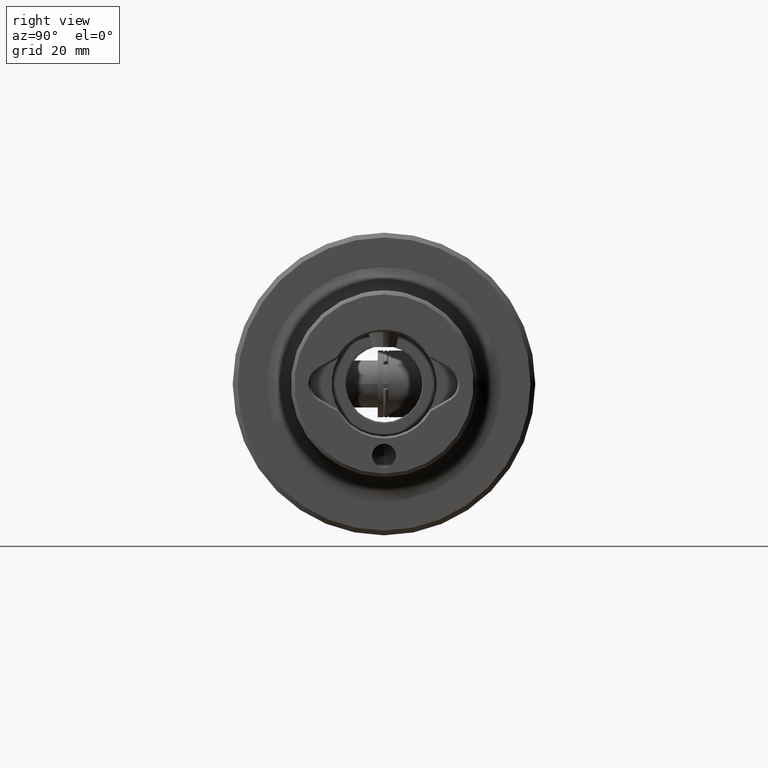
[diagram: clean part render]
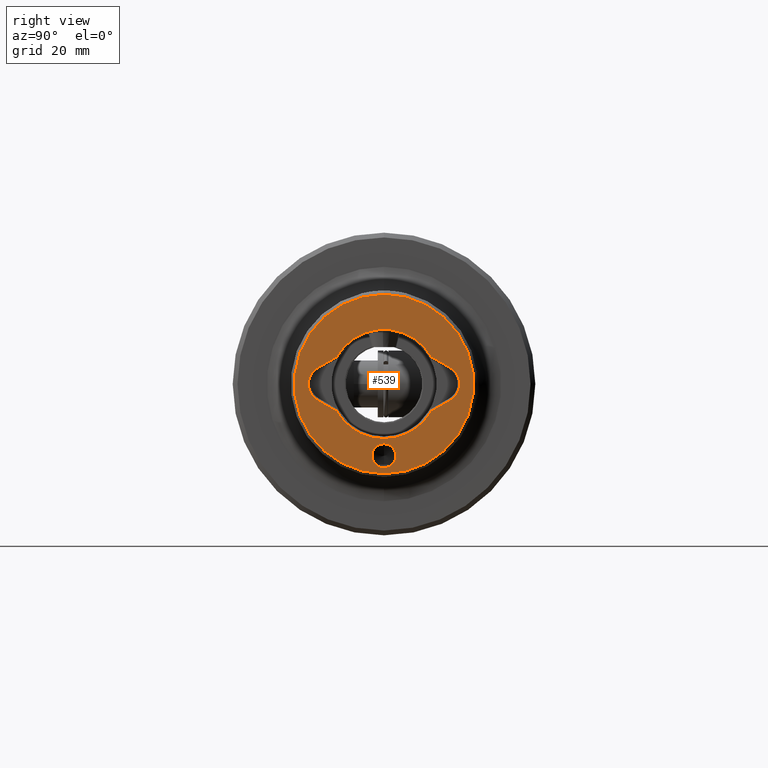
[diagram: same view with one face highlighted and labeled with its STEP entity id]
A machine part, right view. The second image highlights one B-rep face of the part: STEP entity #539.
In plain terms, the highlighted planar face has unit normal (1, 0, 0).
Its self-contained STEP definition (entity closure, byte-faithful):
#133 = DIRECTION ( 'NONE',  ( -1.000000000000000000, -0.0000000000000000000, -0.0000000000000000000 ) ) ;
#138 = CIRCLE ( 'NONE', #1647, 11.39999999999999300 ) ;
#224 = DIRECTION ( 'NONE',  ( -1.000000000000000000, -0.0000000000000000000, -0.0000000000000000000 ) ) ;
#259 = LINE ( 'NONE', #4047, #4473 ) ;
#263 = CARTESIAN_POINT ( 'NONE',  ( 124.0000000000000000, 0.0000000000000000000, -17.49999999999999600 ) ) ;
#373 = ORIENTED_EDGE ( 'NONE', *, *, #2953, .T. ) ;
#421 = CARTESIAN_POINT ( 'NONE',  ( 124.0000000000000000, 0.0000000000000000000, -15.00000000000000000 ) ) ;
#445 = DIRECTION ( 'NONE',  ( 0.0000000000000000000, 0.0000000000000000000, -1.000000000000000000 ) ) ;
#446 = VECTOR ( 'NONE', #3450, 1000.000000000000000 ) ;
#532 = ORIENTED_EDGE ( 'NONE', *, *, #3306, .T. ) ;
#539 = ADVANCED_FACE ( 'NONE', ( #925, #4188, #2014 ), #3411, .T. ) ;
#657 = AXIS2_PLACEMENT_3D ( 'NONE', #3458, #1004, #3875 ) ;
#779 = LINE ( 'NONE', #2772, #1855 ) ;
#803 = EDGE_CURVE ( 'NONE', #4954, #1949, #3296, .T. ) ;
#839 = CIRCLE ( 'NONE', #2760, 11.39999999999999100 ) ;
#925 = FACE_BOUND ( 'NONE', #4695, .T. ) ;
#954 = VERTEX_POINT ( 'NONE', #5038 ) ;
#965 = CARTESIAN_POINT ( 'NONE',  ( 124.0000000000000000, 2.329890535377839500E-015, -18.75000000000000000 ) ) ;
#1004 = DIRECTION ( 'NONE',  ( -1.000000000000000000, -0.0000000000000000000, -0.0000000000000000000 ) ) ;
#1099 = VECTOR ( 'NONE', #2131, 1000.000000000000000 ) ;
#1106 = CIRCLE ( 'NONE', #2880, 3.899999999999988400 ) ;
#1195 = CARTESIAN_POINT ( 'NONE',  ( 124.0000000000000000, 0.0000000000000000000, 0.0000000000000000000 ) ) ;
#1246 = CARTESIAN_POINT ( 'NONE',  ( 124.0000000000000000, 11.91000000000000700, -3.469446951953614200E-015 ) ) ;
#1301 = DIRECTION ( 'NONE',  ( -1.000000000000000000, -0.0000000000000000000, -0.0000000000000000000 ) ) ;
#1325 = ORIENTED_EDGE ( 'NONE', *, *, #3987, .T. ) ;
#1369 = DIRECTION ( 'NONE',  ( 1.000000000000000000, 0.0000000000000000000, 0.0000000000000000000 ) ) ;
#1382 = DIRECTION ( 'NONE',  ( 1.000000000000000000, -0.0000000000000000000, -0.0000000000000000000 ) ) ;
#1567 = ORIENTED_EDGE ( 'NONE', *, *, #3164, .F. ) ;
#1602 = DIRECTION ( 'NONE',  ( 0.0000000000000000000, 0.0000000000000000000, -1.000000000000000000 ) ) ;
#1647 = AXIS2_PLACEMENT_3D ( 'NONE', #3749, #1301, #4166 ) ;
#1655 = DIRECTION ( 'NONE',  ( 0.0000000000000000000, -8.896017825522113300E-016, -1.000000000000000000 ) ) ;
#1682 = VERTEX_POINT ( 'NONE', #2508 ) ;
#1840 = AXIS2_PLACEMENT_3D ( 'NONE', #421, #4517, #445 ) ;
#1855 = VECTOR ( 'NONE', #3183, 1000.000000000000100 ) ;
#1949 = VERTEX_POINT ( 'NONE', #3659 ) ;
#1964 = EDGE_LOOP ( 'NONE', ( #3510, #1567 ) ) ;
#1970 = CARTESIAN_POINT ( 'NONE',  ( 124.0000000000000000, 0.0000000000000000000, 0.0000000000000000000 ) ) ;
#2014 = FACE_OUTER_BOUND ( 'NONE', #1964, .T. ) ;
#2129 = VERTEX_POINT ( 'NONE', #965 ) ;
#2131 = DIRECTION ( 'NONE',  ( 0.0000000000000000000, 0.8660254037844397100, -0.4999999999999981700 ) ) ;
#2146 = ORIENTED_EDGE ( 'NONE', *, *, #2304, .T. ) ;
#2304 = EDGE_CURVE ( 'NONE', #2669, #954, #1106, .T. ) ;
#2339 = VERTEX_POINT ( 'NONE', #4926 ) ;
#2385 = DIRECTION ( 'NONE',  ( 0.0000000000000000000, 0.0000000000000000000, 1.000000000000000000 ) ) ;
#2415 = VERTEX_POINT ( 'NONE', #4965 ) ;
#2422 = ORIENTED_EDGE ( 'NONE', *, *, #3061, .F. ) ;
#2452 = ORIENTED_EDGE ( 'NONE', *, *, #3926, .T. ) ;
#2496 = CIRCLE ( 'NONE', #4857, 3.899999999999986600 ) ;
#2508 = CARTESIAN_POINT ( 'NONE',  ( 124.0000000000000000, 0.0000000000000000000, 18.75000000000000000 ) ) ;
#2524 = ORIENTED_EDGE ( 'NONE', *, *, #4904, .T. ) ;
#2572 = CARTESIAN_POINT ( 'NONE',  ( 124.0000000000000000, 0.0000000000000000000, 0.0000000000000000000 ) ) ;
#2629 = CIRCLE ( 'NONE', #5147, 2.499999999999998700 ) ;
#2669 = VERTEX_POINT ( 'NONE', #4708 ) ;
#2671 = CARTESIAN_POINT ( 'NONE',  ( 124.0000000000000000, -11.91000000000002000, 0.0000000000000000000 ) ) ;
#2690 = VERTEX_POINT ( 'NONE', #3113 ) ;
#2703 = AXIS2_PLACEMENT_3D ( 'NONE', #1195, #4061, #1602 ) ;
#2760 = AXIS2_PLACEMENT_3D ( 'NONE', #2572, #133, #2990 ) ;
#2767 = LINE ( 'NONE', #3043, #446 ) ;
#2772 = CARTESIAN_POINT ( 'NONE',  ( 124.0000000000000000, 9.795993735232698900, -5.723854185711016600 ) ) ;
#2880 = AXIS2_PLACEMENT_3D ( 'NONE', #1246, #4111, #1655 ) ;
#2941 = AXIS2_PLACEMENT_3D ( 'NONE', #1970, #4831, #2385 ) ;
#2953 = EDGE_CURVE ( 'NONE', #4454, #2669, #4228, .T. ) ;
#2990 = DIRECTION ( 'NONE',  ( 0.0000000000000000000, 8.881784197001252300E-016, -1.000000000000000000 ) ) ;
#3043 = CARTESIAN_POINT ( 'NONE',  ( 124.0000000000000000, -9.795993735232702400, 5.723854185711012100 ) ) ;
#3061 = EDGE_CURVE ( 'NONE', #1949, #4954, #2629, .T. ) ;
#3082 = DIRECTION ( 'NONE',  ( 0.0000000000000000000, 0.0000000000000000000, -1.000000000000000000 ) ) ;
#3093 = CARTESIAN_POINT ( 'NONE',  ( 124.0000000000000000, 9.890284626598264200, -5.669415314198976900 ) ) ;
#3113 = CARTESIAN_POINT ( 'NONE',  ( 124.0000000000000000, -9.890284626598246500, -5.669415314199007100 ) ) ;
#3164 = EDGE_CURVE ( 'NONE', #2129, #1682, #3464, .T. ) ;
#3183 = DIRECTION ( 'NONE',  ( 0.0000000000000000000, -0.8660254037844389300, -0.4999999999999995600 ) ) ;
#3282 = CARTESIAN_POINT ( 'NONE',  ( 124.0000000000000000, -9.890284626598262500, 5.669415314198976000 ) ) ;
#3296 = CIRCLE ( 'NONE', #1840, 2.499999999999998700 ) ;
#3306 = EDGE_CURVE ( 'NONE', #954, #3803, #779, .T. ) ;
#3387 = CIRCLE ( 'NONE', #2703, 11.39999999999999300 ) ;
#3411 = PLANE ( 'NONE',  #4411 ) ;
#3450 = DIRECTION ( 'NONE',  ( 0.0000000000000000000, 0.8660254037844388200, 0.4999999999999996100 ) ) ;
#3458 = CARTESIAN_POINT ( 'NONE',  ( 124.0000000000000000, 0.0000000000000000000, 0.0000000000000000000 ) ) ;
#3464 = CIRCLE ( 'NONE', #657, 18.75000000000000000 ) ;
#3474 = EDGE_CURVE ( 'NONE', #2339, #2690, #138, .T. ) ;
#3510 = ORIENTED_EDGE ( 'NONE', *, *, #4775, .F. ) ;
#3612 = EDGE_CURVE ( 'NONE', #5136, #4454, #839, .T. ) ;
#3659 = CARTESIAN_POINT ( 'NONE',  ( 124.0000000000000000, 3.061616997868381200E-016, -12.50000000000000000 ) ) ;
#3700 = EDGE_CURVE ( 'NONE', #2415, #5136, #2767, .T. ) ;
#3732 = ORIENTED_EDGE ( 'NONE', *, *, #3474, .T. ) ;
#3749 = CARTESIAN_POINT ( 'NONE',  ( 124.0000000000000000, 0.0000000000000000000, 0.0000000000000000000 ) ) ;
#3803 = VERTEX_POINT ( 'NONE', #3093 ) ;
#3827 = CARTESIAN_POINT ( 'NONE',  ( 124.0000000000000000, 0.0000000000000000000, 0.0000000000000000000 ) ) ;
#3834 = CARTESIAN_POINT ( 'NONE',  ( 124.0000000000000000, 0.0000000000000000000, -15.00000000000000000 ) ) ;
#3848 = CIRCLE ( 'NONE', #2941, 18.75000000000000000 ) ;
#3875 = DIRECTION ( 'NONE',  ( 0.0000000000000000000, 0.0000000000000000000, 1.000000000000000000 ) ) ;
#3923 = ORIENTED_EDGE ( 'NONE', *, *, #3612, .T. ) ;
#3926 = EDGE_CURVE ( 'NONE', #2690, #4825, #259, .T. ) ;
#3987 = EDGE_CURVE ( 'NONE', #3803, #2339, #3387, .T. ) ;
#4047 = CARTESIAN_POINT ( 'NONE',  ( 124.0000000000000000, -13.86000000000002100, -3.377499074759313700 ) ) ;
#4061 = DIRECTION ( 'NONE',  ( -1.000000000000000000, -0.0000000000000000000, -0.0000000000000000000 ) ) ;
#4111 = DIRECTION ( 'NONE',  ( -1.000000000000000000, -0.0000000000000000000, -0.0000000000000000000 ) ) ;
#4166 = DIRECTION ( 'NONE',  ( 0.0000000000000000000, 0.0000000000000000000, -1.000000000000000000 ) ) ;
#4188 = FACE_BOUND ( 'NONE', #4589, .T. ) ;
#4228 = LINE ( 'NONE', #4574, #1099 ) ;
#4230 = DIRECTION ( 'NONE',  ( 0.0000000000000000000, 0.0000000000000000000, -1.000000000000000000 ) ) ;
#4239 = DIRECTION ( 'NONE',  ( 0.0000000000000000000, 0.0000000000000000000, -1.000000000000000000 ) ) ;
#4382 = ORIENTED_EDGE ( 'NONE', *, *, #3700, .T. ) ;
#4411 = AXIS2_PLACEMENT_3D ( 'NONE', #3827, #1369, #4230 ) ;
#4446 = DIRECTION ( 'NONE',  ( 0.0000000000000000000, -0.8660254037844400400, 0.4999999999999974500 ) ) ;
#4454 = VERTEX_POINT ( 'NONE', #4882 ) ;
#4473 = VECTOR ( 'NONE', #4446, 1000.000000000000100 ) ;
#4517 = DIRECTION ( 'NONE',  ( 1.000000000000000000, -0.0000000000000000000, -0.0000000000000000000 ) ) ;
#4574 = CARTESIAN_POINT ( 'NONE',  ( 124.0000000000000000, 13.86000000000000800, 3.377499074759306600 ) ) ;
#4589 = EDGE_LOOP ( 'NONE', ( #2524, #4382, #3923, #373, #2146, #532, #1325, #3732, #2452 ) ) ;
#4633 = ORIENTED_EDGE ( 'NONE', *, *, #803, .F. ) ;
#4695 = EDGE_LOOP ( 'NONE', ( #4633, #2422 ) ) ;
#4708 = CARTESIAN_POINT ( 'NONE',  ( 124.0000000000000000, 13.86000000000001000, 3.377499074759305700 ) ) ;
#4775 = EDGE_CURVE ( 'NONE', #1682, #2129, #3848, .T. ) ;
#4825 = VERTEX_POINT ( 'NONE', #5071 ) ;
#4831 = DIRECTION ( 'NONE',  ( -1.000000000000000000, -0.0000000000000000000, -0.0000000000000000000 ) ) ;
#4857 = AXIS2_PLACEMENT_3D ( 'NONE', #2671, #224, #3082 ) ;
#4882 = CARTESIAN_POINT ( 'NONE',  ( 124.0000000000000000, 9.890284626598251800, 5.669415314198994700 ) ) ;
#4904 = EDGE_CURVE ( 'NONE', #4825, #2415, #2496, .T. ) ;
#4926 = CARTESIAN_POINT ( 'NONE',  ( 124.0000000000000000, 0.0000000000000000000, -11.39999999999999300 ) ) ;
#4954 = VERTEX_POINT ( 'NONE', #263 ) ;
#4965 = CARTESIAN_POINT ( 'NONE',  ( 124.0000000000000000, -13.86000000000001400, 3.377499074759299000 ) ) ;
#5038 = CARTESIAN_POINT ( 'NONE',  ( 124.0000000000000000, 13.86000000000000100, -3.377499074759305200 ) ) ;
#5071 = CARTESIAN_POINT ( 'NONE',  ( 124.0000000000000000, -13.86000000000002300, -3.377499074759312800 ) ) ;
#5136 = VERTEX_POINT ( 'NONE', #3282 ) ;
#5147 = AXIS2_PLACEMENT_3D ( 'NONE', #3834, #1382, #4239 ) ;